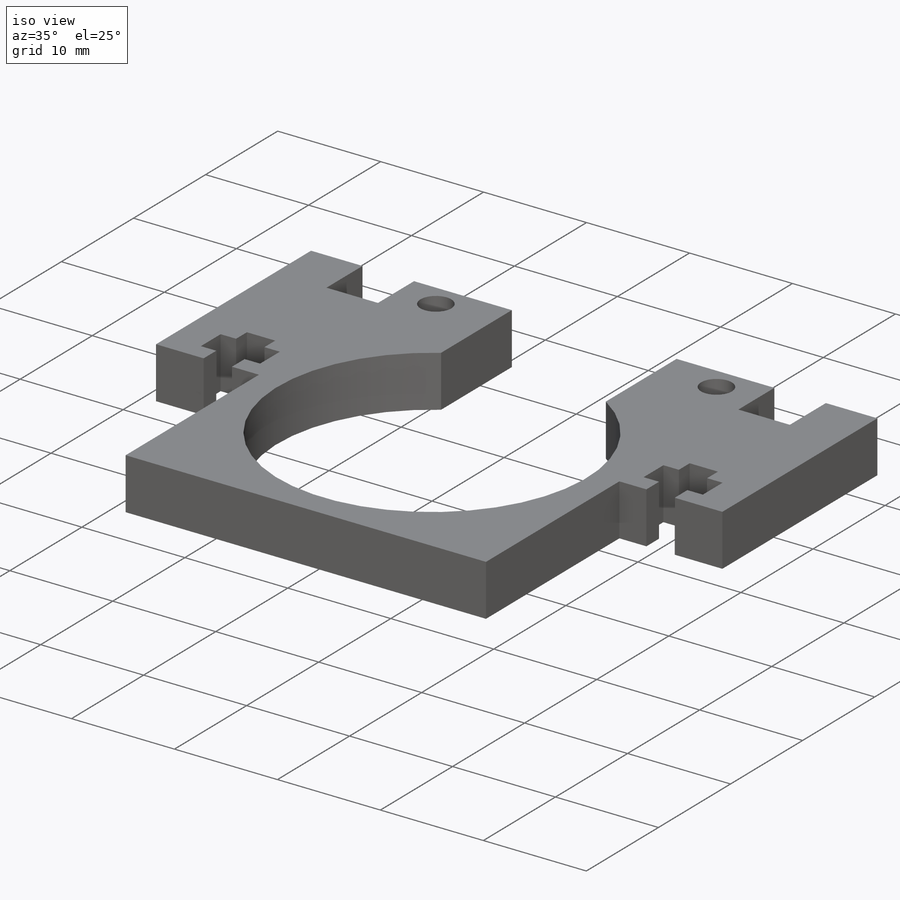
[diagram: iso view]
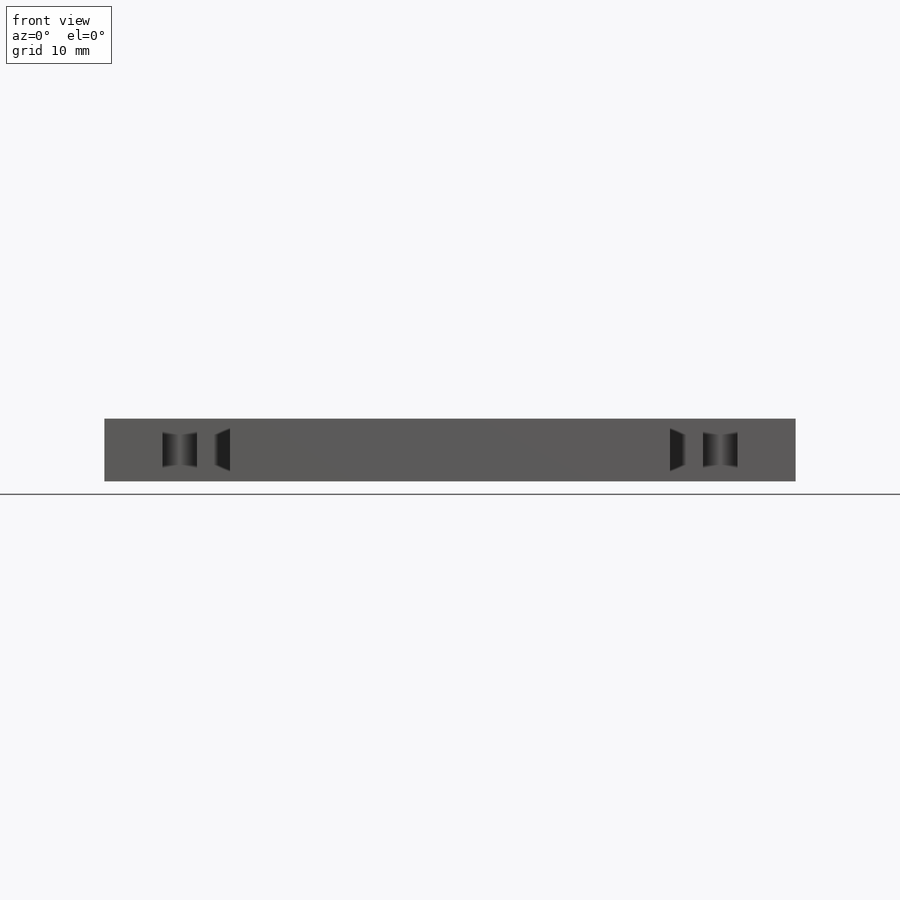
[diagram: front view]
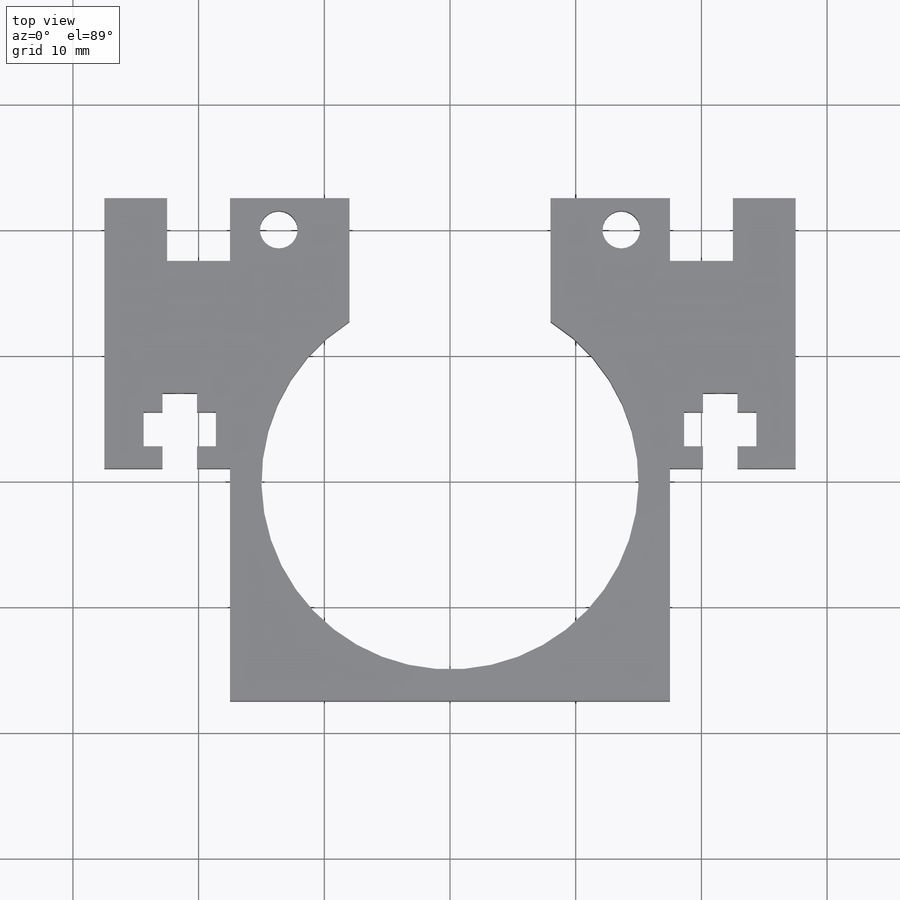
[diagram: top view]
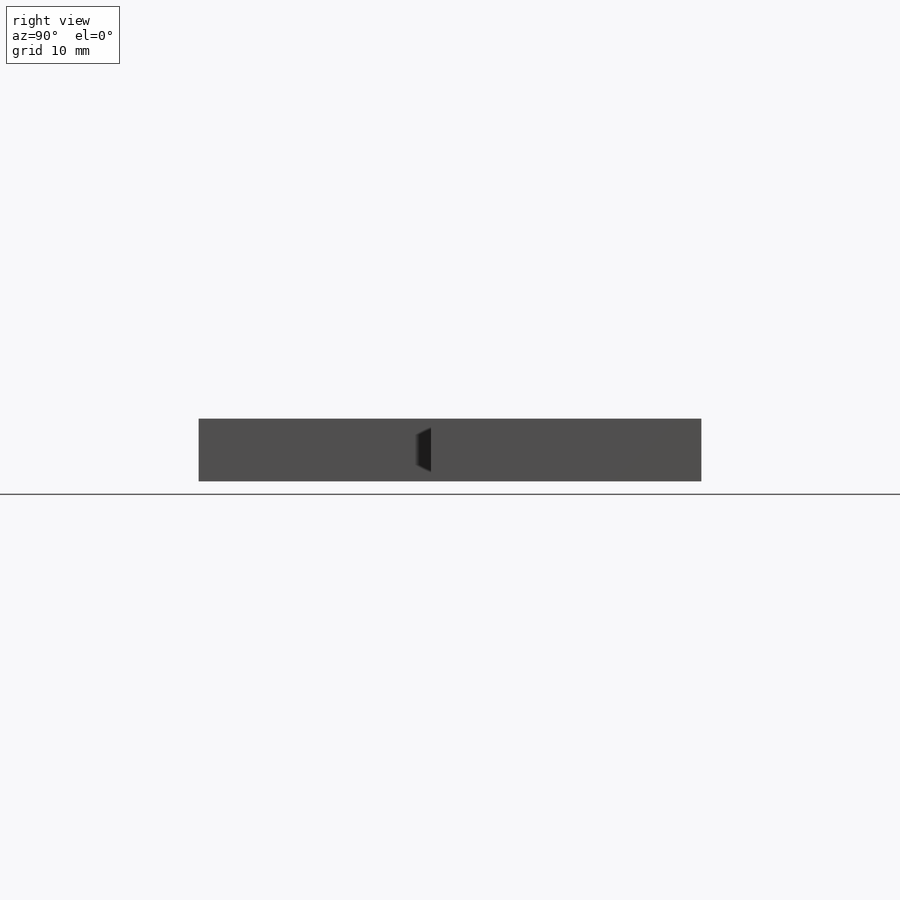
[diagram: right view]
SOLIDWORKS PART (.sldprt)
format: sldprt  version: not decoded by parser v0  size: 593,408 bytes
history: native  units: mm
features: sketch x8, cut_extrude x5, plane x4, extrude x3, mirror x2, material x1 (+10 scaffold rows collapsed)
feature tree (33):
  scaffold x10  (default folders/planes/origin — collapsed)
  material  "Balsa"
  plane  "Plan de face"
  plane  "Plan de dessus"
  plane  "Plan de droite"
  sketch  "Esquisse1"  dims[c1.D3=30.0mm c1.D1=35.0mm c1.D2=35.0mm c1.D4=17.0mm c1.D5=~17.723554mm c2.D4=17.5mm c2.D5=17.5mm c2.D3=17.5mm c3.D4=17.5mm]
  extrude  "Boss.-Extru.1"  Depth=5mm
  sketch  "Esquisse2"  dims[c1.D1=5.0mm c1.D2=5.0mm c1.D3=5.0mm c2.D2=5.0mm c2.D1=5.0mm c3.D2=55.0mm c3.D3=10.0mm]
  sketch  "Esquisse3"  dims[D1=30.0mm]
  cut_extrude  "Enlèv. mat.-Extru.1"  Depth=5mm
  plane  "Plan1"
  sketch  "Esquisse8"  dims[D1=16.0mm D2=8.0mm D3=5.0mm]
  sketch  "Esquisse5"  dims[c1.D1=10.0mm c1.D2=10.0mm c1.D3=1.0mm c2.D2=16.5mm]
  extrude  "Boss.-Extru.3"  Depth=5mm
  mirror  "Symétrie1"
  sketch  "Esquisse7"  dims[c1.D1=2.75mm c1.D2=2.75mm c1.D3=5.75mm c1.D4=1.5mm c1.D5=1.5mm c1.D6=1.75mm c1.D7=2.75mm c1.D8=6.0mm c1.D9=2.75mm c1.D10=1.75mm c1.D11=3.875mm c1.D12=10.0mm c2.D11=3.375mm c2.D12=3.875mm c3.D11=2.625mm]
  cut_extrude  "Enlèv. mat.-Extru.3"  Depth=10mm
  mirror  "Symétrie2"
  extrude  "Boss.-Extru.4"  Depth=5mm
  cut_extrude  "Enlèv. mat.-Extru.5"  Depth=5mm
  sketch  "Esquisse9"  dims[c1.D1=5.0mm c1.D2=5.0mm c1.D3=~9.811422mm c2.D1=5.0mm c2.D3=5.0mm c2.D4=5.0mm c2.D5=5.0mm]
  cut_extrude  "Enlèv. mat.-Extru.6"  Depth=5mm
  sketch  "Esquisse10"  dims[D2=3.0mm D1=13.875mm D3=2.5mm]
  cut_extrude  "Enlèv. mat.-Extru.7"  [1 undecoded]
decode coverage: 15 of 18 modeling features carry decoded parameters
note: ~ marks probable driven/reference dimensions
note: 1 parameter value undecoded
note: suppression state not decoded; provenance and decode notes live in map.json
